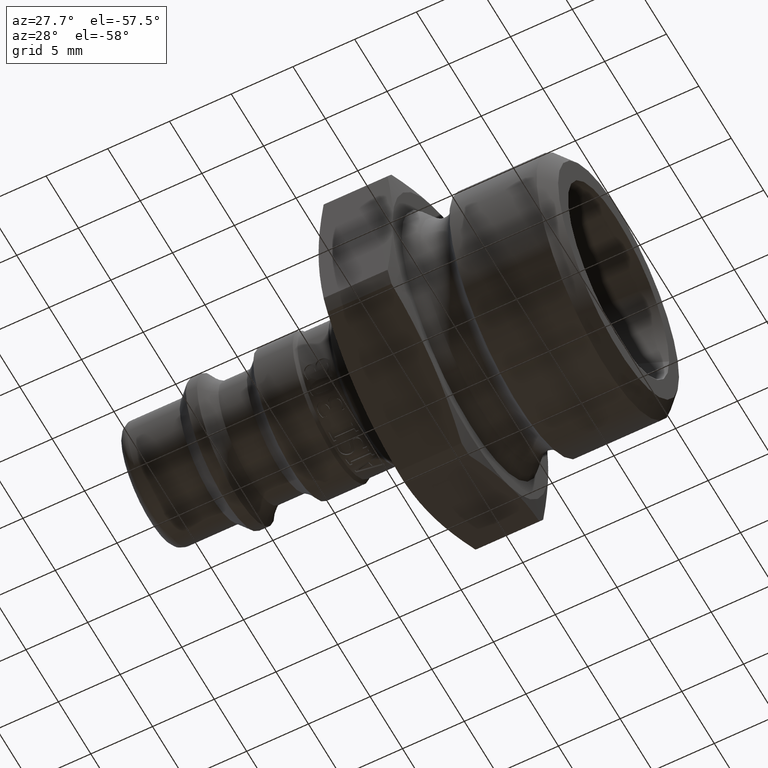
[diagram: clean part render]
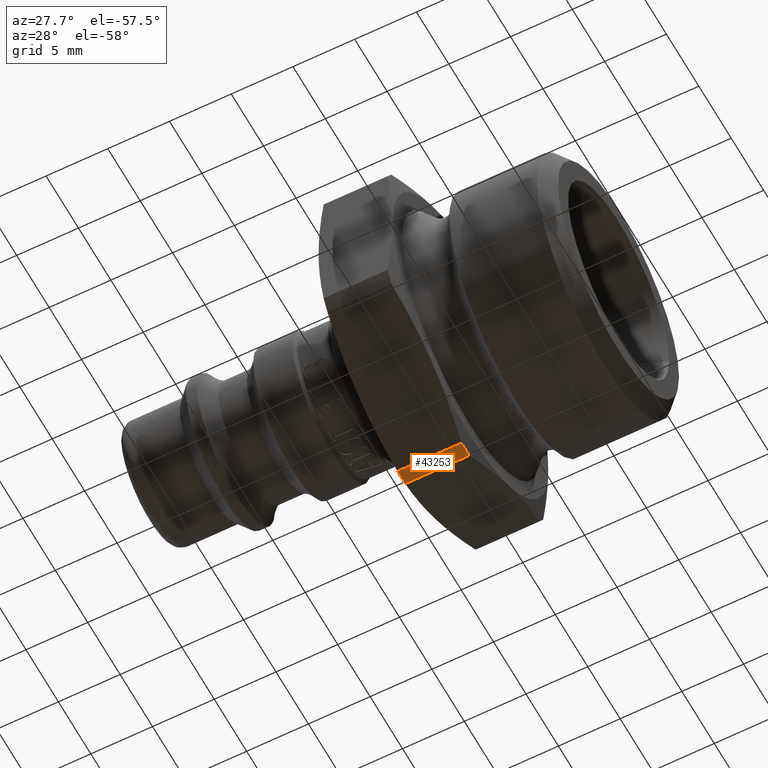
[diagram: same view with one face highlighted and labeled with its STEP entity id]
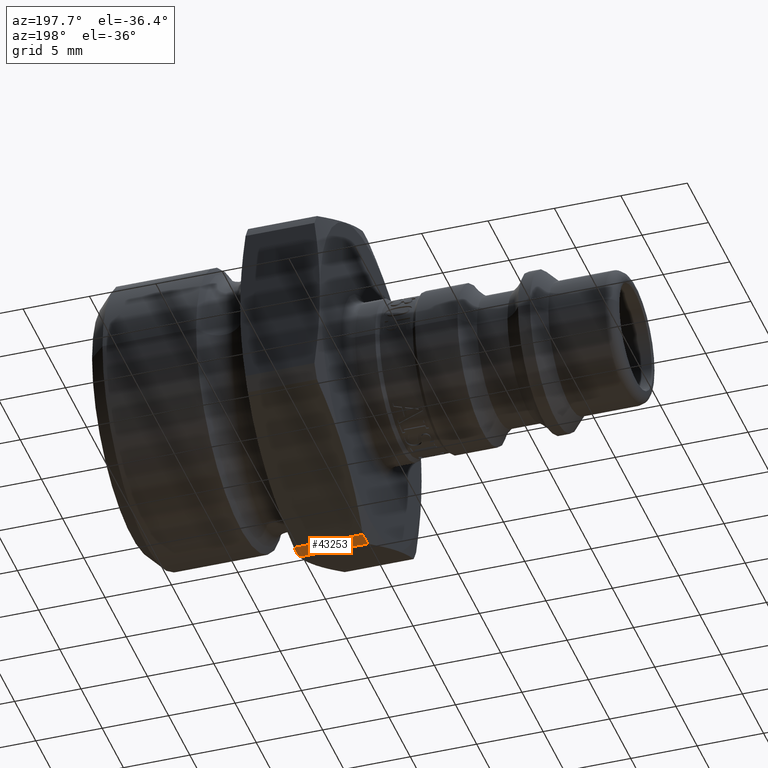
[diagram: same view with one face highlighted and labeled with its STEP entity id]
A machine part, auxiliary view. The second image highlights one B-rep face of the part: STEP entity #43253.
A second angle (auxiliary view) of the same face is appended — the face is thin or edge-on in the first view.
In plain terms, the highlighted cylindrical surface (partial cylindrical patch) has radius 13.525 mm, axis along (1, 0, 0).
Its self-contained STEP definition (entity closure, byte-faithful):
#42107=CARTESIAN_POINT('',(25.591377481542537,0.596832526193548,-13.511825040892049));
#42108=VERTEX_POINT('',#42107);
#42122=CARTESIAN_POINT('',(20.408622518457467,0.596832526193548,-13.511825040892049));
#42123=VERTEX_POINT('',#42122);
#42124=CARTESIAN_POINT('',(20.40862251845747,0.596832526193548,-13.511825040892049));
#42125=DIRECTION('',(1.0,0.0,0.0));
#42126=VECTOR('',#42125,5.18275496308507);
#42127=LINE('',#42124,#42126);
#42128=EDGE_CURVE('',#42123,#42108,#42127,.T.);
#42151=CARTESIAN_POINT('',(20.408622518457467,-0.596832526193559,-13.511825040892049));
#42152=VERTEX_POINT('',#42151);
#42168=CARTESIAN_POINT('',(25.591377481542537,-0.596832526193559,-13.511825040892049));
#42169=VERTEX_POINT('',#42168);
#42170=CARTESIAN_POINT('',(25.591377481542541,-0.596832526193559,-13.511825040892049));
#42171=DIRECTION('',(-1.0,0.0,0.0));
#42172=VECTOR('',#42171,5.18275496308507);
#42173=LINE('',#42170,#42172);
#42174=EDGE_CURVE('',#42169,#42152,#42173,.T.);
#42646=CARTESIAN_POINT('',(25.591377481542537,0.0,0.0));
#42647=DIRECTION('',(1.0,0.0,0.0));
#42648=DIRECTION('',(0.0,1.0,0.0));
#42649=AXIS2_PLACEMENT_3D('',#42646,#42647,#42648);
#42650=CIRCLE('',#42649,13.525);
#42651=EDGE_CURVE('',#42169,#42108,#42650,.T.);
#43230=CARTESIAN_POINT('',(20.408622518457463,0.0,0.0));
#43231=DIRECTION('',(1.0,0.0,0.0));
#43232=DIRECTION('',(0.0,1.0,0.0));
#43233=AXIS2_PLACEMENT_3D('',#43230,#43231,#43232);
#43234=CIRCLE('',#43233,13.525);
#43235=EDGE_CURVE('',#42152,#42123,#43234,.T.);
#43242=CARTESIAN_POINT('',(23.0,0.0,0.0));
#43243=DIRECTION('',(1.0,0.0,0.0));
#43244=DIRECTION('',(0.0,1.0,0.0));
#43245=AXIS2_PLACEMENT_3D('',#43242,#43243,#43244);
#43246=CYLINDRICAL_SURFACE('',#43245,13.525);
#43247=ORIENTED_EDGE('',*,*,#42128,.T.);
#43248=ORIENTED_EDGE('',*,*,#42651,.F.);
#43249=ORIENTED_EDGE('',*,*,#42174,.T.);
#43250=ORIENTED_EDGE('',*,*,#43235,.T.);
#43251=EDGE_LOOP('',(#43247,#43248,#43249,#43250));
#43252=FACE_OUTER_BOUND('',#43251,.T.);
#43253=ADVANCED_FACE('',(#43252),#43246,.T.);